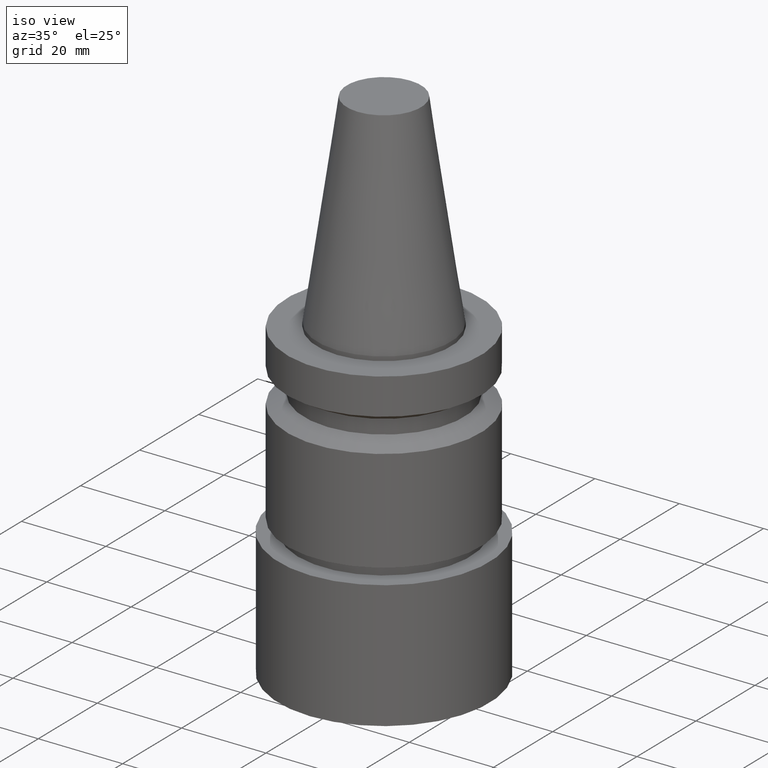
[diagram: clean part render]
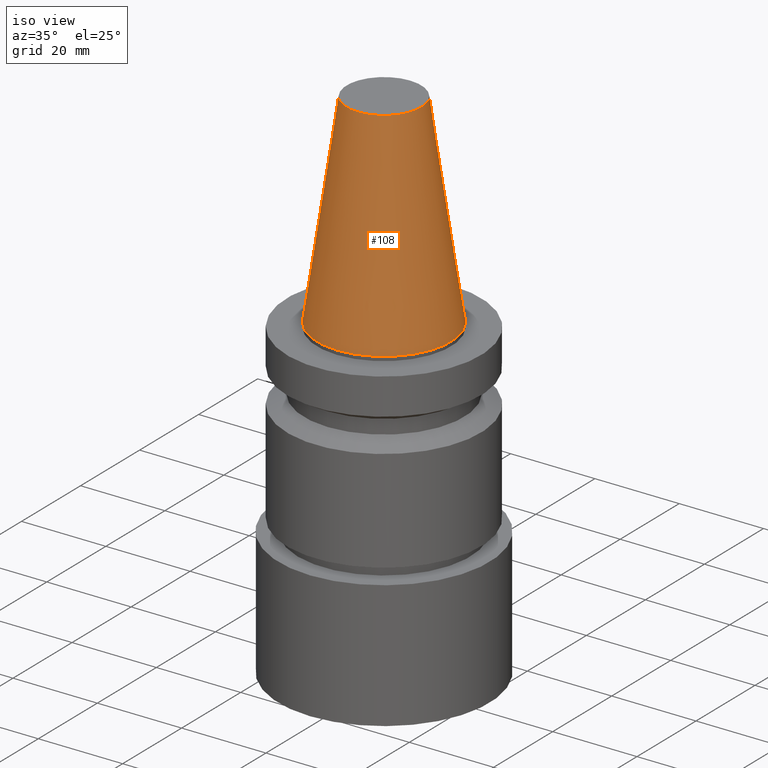
[diagram: same view with one face highlighted and labeled with its STEP entity id]
A machine part, iso view. The second image highlights one B-rep face of the part: STEP entity #108.
In plain terms, the highlighted conical surface has half-angle 8.297 deg.
Its self-contained STEP definition (entity closure, byte-faithful):
#108=ADVANCED_FACE('Unnamed[1]',(#240,#241),#242,.T.);
#110=EDGE_CURVE('Unnamed[1]',#244,#244,#245,.T.);
#156=EDGE_CURVE('Unnamed[1]',#313,#313,#314,.T.);
#240=FACE_BOUND('',#408,.T.);
#241=FACE_BOUND('',#409,.T.);
#242=CONICAL_SURFACE('',#410,12.3457500009933,0.144815870013618);
#244=VERTEX_POINT('',#413);
#245=CIRCLE('',#414,15.875);
#313=VERTEX_POINT('',#497);
#314=CIRCLE('',#498,8.81650000198669);
#408=EDGE_LOOP('',(#571));
#409=EDGE_LOOP('',(#572));
#410=AXIS2_PLACEMENT_3D('',#573,#574,#575);
#413=CARTESIAN_POINT('',(-1.95674482349743E-031,15.875,1.94412679364642E-015));
#414=AXIS2_PLACEMENT_3D('',#576,#577,#578);
#497=CARTESIAN_POINT('',(-2.96364525393659E-015,8.81650000198669,48.4));
#498=AXIS2_PLACEMENT_3D('',#651,#652,#653);
#571=ORIENTED_EDGE('',*,*,#110,.F.);
#572=ORIENTED_EDGE('',*,*,#156,.T.);
#573=CARTESIAN_POINT('',(-1.4818226269683E-015,-2.96364525393659E-015,24.2));
#574=DIRECTION('',(6.12323399573677E-017,1.22464679914735E-016,-1.0));
#575=DIRECTION('',(-1.23259516440783E-032,1.0,1.22464679914735E-016));
#576=CARTESIAN_POINT('',(0.0,0.0,0.0));
#577=DIRECTION('',(6.12323399573677E-017,1.22464679914735E-016,-1.0));
#578=DIRECTION('',(-1.23259516440783E-032,1.0,1.22464679914735E-016));
#651=CARTESIAN_POINT('',(-2.96364525393659E-015,-5.92729050787319E-015,48.4));
#652=DIRECTION('',(6.12323399573677E-017,1.22464679914735E-016,-1.0));
#653=DIRECTION('',(-1.23259516440783E-032,1.0,1.22464679914735E-016));